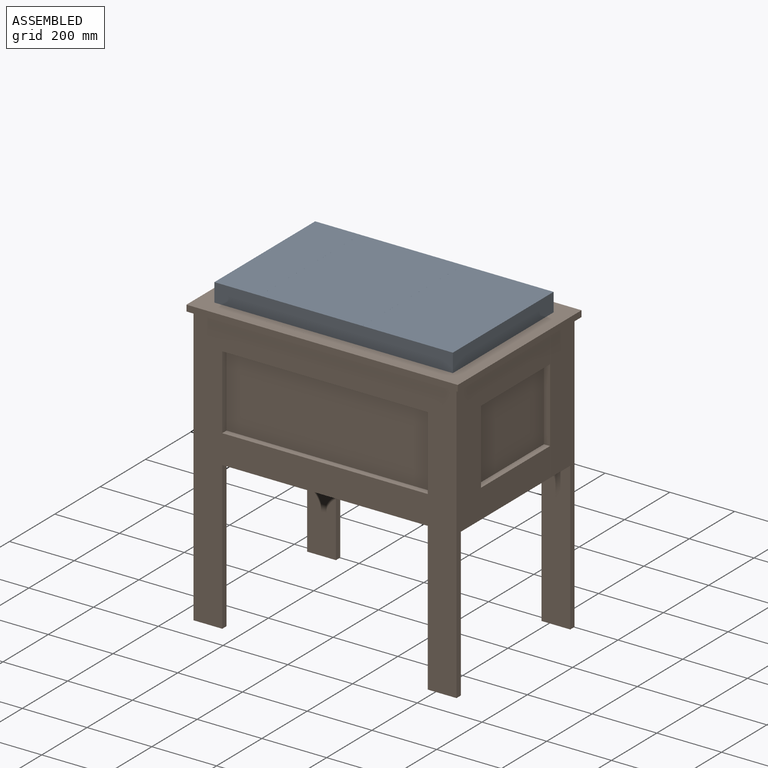
[diagram: assembled view]
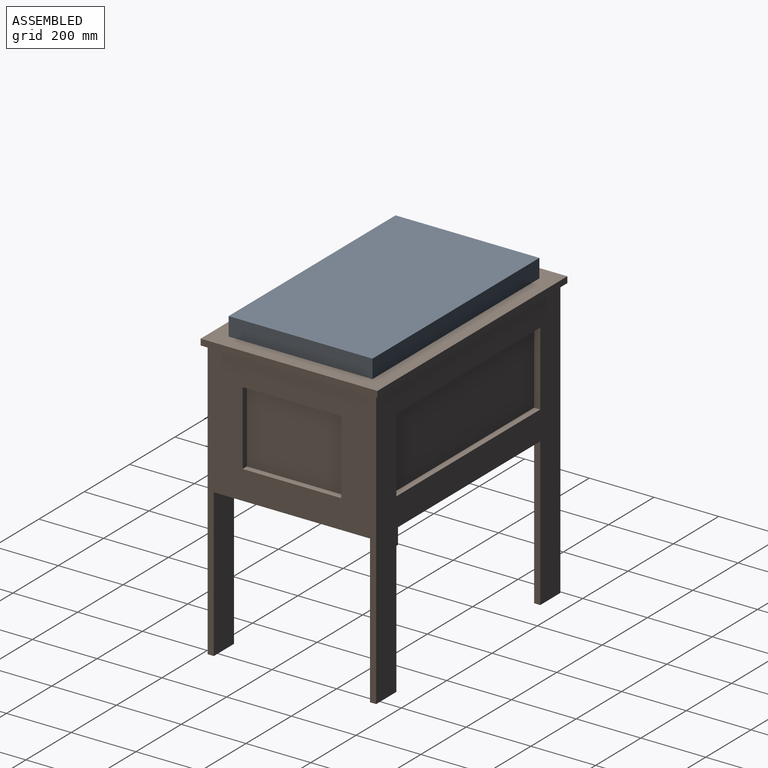
[diagram: assembled view, second angle]
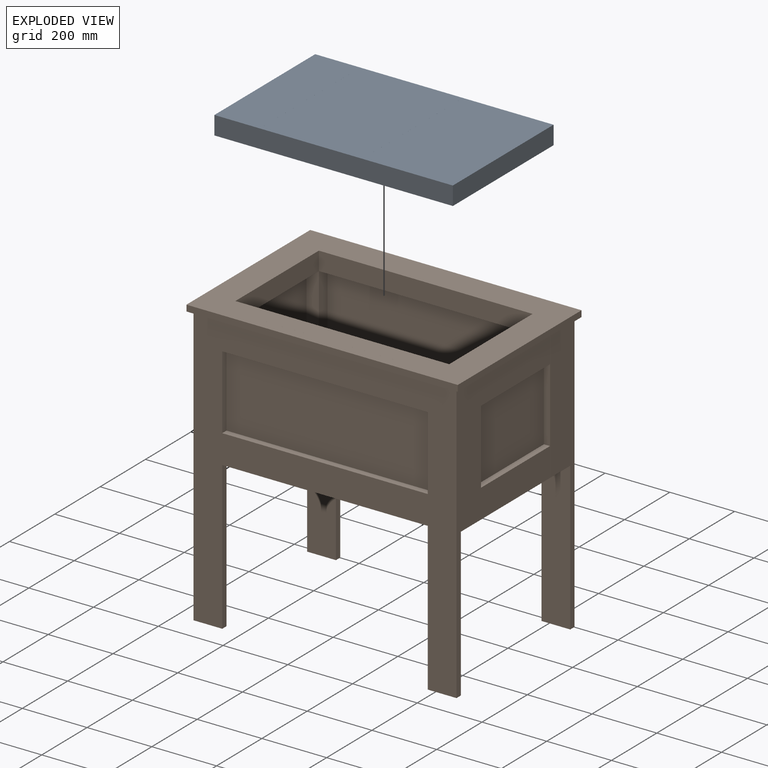
[diagram: exploded view]
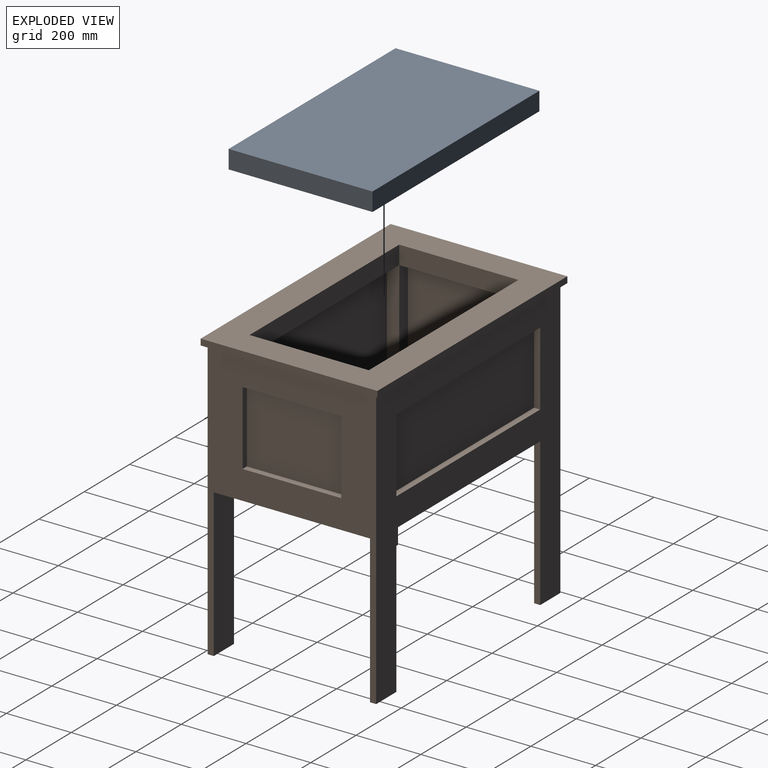
[diagram: exploded view, second angle]
ASSEMBLY  parts=2 mates=3
PART A: 29 faces, bbox 736.6x444.5x57.2 mm
  f0: plane 215.9x38.1mm, normal (0,1,0), area 8225.8mm2, adj f6,f9,f16,f20
  f1: plane 215.9x38.1mm, normal (0,-1,0), area 8225.8mm2, adj f6,f9,f16,f20
  f2: plane 152.4x38.1mm, normal (0,1,0), area 5806.4mm2, adj f6,f14,f15,f25
  f3: plane 152.4x38.1mm, normal (0,-1,0), area 5806.4mm2, adj f6,f14,f15,f25
  f4: plane 215.9x38.1mm, normal (0,1,0), area 8225.8mm2, adj f6,f10,f13,f17
  f5: plane 736.6x57.15mm, normal (0,-1,0), area 42089.6mm2, adj f6,f7,f8,f18,f19,f21,f22,f23
  f6: plane 736.6x444.5mm, normal (0,0,-1), area 112257.8mm2, adj f0,f1,f2,f3,f4,f5,f7,f8
  f7: plane 444.5x57.15mm, normal (1,0,0), area 25403.2mm2, adj f5,f6,f12,f22
  f8: plane 444.5x57.15mm, normal (-1,0,0), area 25403.2mm2, adj f5,f6,f12,f19
  f9: plane 368.3x38.1mm, normal (-1,0,0), area 14032.2mm2, adj f0,f1,f6,f20
  f10: plane 368.3x38.1mm, normal (1,0,0), area 14032.2mm2, adj f4,f6,f11,f17
  f11: plane 215.9x38.1mm, normal (0,-1,0), area 8225.8mm2, adj f6,f10,f13,f17
  f12: plane 736.6x57.15mm, normal (0,1,0), area 42089.6mm2, adj f6,f7,f8,f18,f19,f21,f22,f23
  f13: plane 368.3x38.1mm, normal (-1,0,0), area 14032.2mm2, adj f4,f6,f11,f17
  f14: plane 368.3x38.1mm, normal (1,0,0), area 14032.2mm2, adj f2,f3,f6,f25
  f15: plane 368.3x38.1mm, normal (-1,0,0), area 14032.2mm2, adj f2,f3,f6,f25
  f16: plane 368.3x38.1mm, normal (1,0,0), area 14032.2mm2, adj f0,f1,f6,f20
  f17: plane 368.3x215.9mm, normal (0,0,-1), area 79516mm2, adj f4,f10,f11,f13
  f18: plane 444.5x0.03mm, normal (1,0,0), area 11.3mm2, adj f5,f12,f19,f23
  f19: plane 444.5x139.7mm, normal (0,0,1), area 62096.6mm2, adj f5,f8,f12,f18
  f20: plane 368.3x215.9mm, normal (0,0,-1), area 79516mm2, adj f0,f1,f9,f16
  f21: plane 444.5x0.03mm, normal (-1,0,0), area 11.3mm2, adj f5,f12,f22,f24
  f22: plane 444.5x139.7mm, normal (0,0,1), area 62096.7mm2, adj f5,f7,f12,f21
  f23: plane 444.5x139.7mm, normal (0,0,1), area 62096.6mm2, adj f5,f12,f18,f27
  f24: plane 444.5x139.7mm, normal (0,0,1), area 62096.6mm2, adj f5,f12,f21,f26
  f25: plane 368.3x152.4mm, normal (0,0,-1), area 56128.9mm2, adj f2,f3,f14,f15
  f26: plane 444.5x0.03mm, normal (1,0,0), area 11.3mm2, adj f5,f12,f24,f28
  f27: plane 444.5x0.03mm, normal (-1,0,0), area 11.3mm2, adj f5,f12,f23,f28
  f28: plane 444.5x177.8mm, normal (0,0,1), area 79032.1mm2, adj f5,f12,f26,f27
PART B: 150 faces, bbox 838.2x546.1x882.7 mm
  f0: plane 368.3x0.03mm, normal (0,0,1), area 9.4mm2, adj f1,f49,f55,f144
  f1: plane 660.43x57.15mm, normal (0,1,0), area 37742.3mm2, adj f0,f46,f49,f53,f138,f144
  f2: plane 228.6x107.92mm, normal (0,1,0), area 24671.6mm2, adj f3,f83,f132,f135
  f3: plane 863.6x19.05mm, normal (1,0,0), area 13069mm2, adj f2,f45,f122,f123,f124,f131,f132,f135
  f4: plane 228.6x107.92mm, normal (0,1,0), area 24671.6mm2, adj f88,f126,f132,f135
  f5: plane 228.6x139.7mm, normal (0,1,0), area 31935.4mm2, adj f85,f86,f132,f135
  f6: plane 228.6x107.92mm, normal (0,-1,0), area 24671.6mm2, adj f74,f111,f116,f121
  f7: plane 863.6x19.05mm, normal (-1,0,0), area 13069mm2, adj f8,f45,f95,f96,f97,f116,f117,f120
  f8: plane 228.6x107.92mm, normal (0,-1,0), area 24671.6mm2, adj f7,f73,f116,f121
  f9: plane 228.6x139.7mm, normal (0,-1,0), area 31935.4mm2, adj f28,f69,f116,f121
  f10: plane 406.4x19.05mm, normal (0,1,0), area 4359.3mm2, adj f11,f45,f103,f106,f107,f108,f109,f137
  f11: plane 228.6x82.55mm, normal (-1,0,0), area 18870.9mm2, adj f10,f14,f106,f108
  f12: plane 228.6x82.55mm, normal (-1,0,0), area 18870.9mm2, adj f13,f16,f106,f108
  f13: plane 406.4x19.05mm, normal (0,-1,0), area 4359.3mm2, adj f12,f45,f105,f106,f107,f108,f109,f137
  f14: plane 228.6x0.03mm, normal (0,-1,0), area 5.8mm2, adj f11,f15,f106,f108
  f15: plane 228.6x139.7mm, normal (-1,0,0), area 31935.4mm2, adj f14,f16,f106,f108
  f16: plane 228.6x0.03mm, normal (0,1,0), area 5.8mm2, adj f12,f15,f106,f108
  f17: plane 406.4x19.05mm, normal (0,-1,0), area 4359.3mm2, adj f18,f45,f94,f98,f99,f100,f101,f137
  f18: plane 228.6x82.55mm, normal (1,0,0), area 18870.9mm2, adj f17,f23,f99,f101
  f19: plane 228.6x82.55mm, normal (1,0,0), area 18870.9mm2, adj f20,f21,f99,f101
  f20: plane 406.4x19.05mm, normal (0,1,0), area 4359.3mm2, adj f19,f45,f92,f98,f99,f100,f101,f137
  f21: plane 228.6x0.03mm, normal (0,-1,0), area 5.8mm2, adj f19,f22,f99,f101
  f22: plane 228.6x139.7mm, normal (1,0,0), area 31935.4mm2, adj f21,f23,f99,f101
  f23: plane 228.6x0.03mm, normal (0,1,0), area 5.8mm2, adj f18,f22,f99,f101
  f24: plane 406.4x19.05mm, normal (0,1,0), area 7741.9mm2, adj f43,f45,f82,f149
  f25: plane 406.4x12.7mm, normal (-1,0,0), area 5161.3mm2, adj f44,f45,f80,f142
  f26: plane 406.4x12.7mm, normal (1,0,0), area 5161.3mm2, adj f45,f56,f78,f148
  f27: plane 406.4x19.05mm, normal (0,-1,0), area 7741.9mm2, adj f45,f47,f72,f143
  f28: plane 425.45x0.03mm, normal (1,0,0), area 10.8mm2, adj f9,f45,f71,f115,f118,f138
  f29: plane 101.6x38.1mm, normal (0,1,0), area 3871mm2, adj f45,f48,f54,f67
  f30: plane 101.6x38.1mm, normal (0,-1,0), area 3871mm2, adj f45,f48,f54,f67
  f31: plane 171.45x38.1mm, normal (0,1,0), area 6532.2mm2, adj f45,f48,f65,f66
  f32: plane 171.45x38.1mm, normal (0,-1,0), area 6532.2mm2, adj f45,f48,f65,f66
  f33: plane 171.45x38.1mm, normal (0,1,0), area 6532.2mm2, adj f45,f48,f63,f64
  f34: plane 171.45x38.1mm, normal (0,-1,0), area 6532.2mm2, adj f45,f48,f63,f64
  f35: plane 368.3x38.1mm, normal (0,0,1), area 14032.2mm2, adj f39,f54,f61,f81
  f36: plane 660.4x38.1mm, normal (0,0,-1), area 25161.2mm2, adj f55,f58,f60,f90
  f37: plane 368.3x38.1mm, normal (0,0,-1), area 14032.2mm2, adj f40,f49,f59,f76
  f38: plane 101.6x38.1mm, normal (0,1,0), area 3871mm2, adj f45,f48,f51,f62
  f39: plane 330.2x38.1mm, normal (0,1,0), area 12580.6mm2, adj f35,f41,f50,f81
  f40: plane 330.2x38.1mm, normal (0,1,0), area 12580.6mm2, adj f37,f42,f52,f76
  f41: plane 330.2x38.1mm, normal (1,0,0), area 12580.6mm2, adj f39,f46,f48,f68
  f42: plane 330.2x38.1mm, normal (-1,0,0), area 12580.6mm2, adj f40,f46,f48,f68
  f43: plane 406.4x12.7mm, normal (-1,0,0), area 5161.3mm2, adj f24,f45,f79,f149
  f44: plane 406.4x19.05mm, normal (0,-1,0), area 7741.9mm2, adj f25,f45,f75,f142
  f45: plane 812.75x520.65mm, normal (0,0,-1), area 211366mm2, adj f3,f7,f10,f13,f17,f20,f24,f25
  f46: plane 660.4x38.1mm, normal (0,0,-1), area 25161.2mm2, adj f1,f41,f42,f68
  f47: plane 406.4x12.7mm, normal (1,0,0), area 5161.3mm2, adj f27,f45,f77,f143
  f48: plane 660.4x444.5mm, normal (0,0,1), area 92419.2mm2, adj f29,f30,f31,f32,f33,f34,f38,f41
  f49: plane 368.3x38.1mm, normal (-1,0,0), area 14032.2mm2, adj f0,f1,f37,f55
  f50: plane 368.3x38.1mm, normal (0,0,-1), area 14032.2mm2, adj f39,f53,f61,f81
  f51: plane 368.3x38.1mm, normal (-1,0,0), area 14032.2mm2, adj f38,f45,f52,f57
  f52: plane 368.3x38.1mm, normal (0,0,1), area 14032.2mm2, adj f40,f51,f59,f76
  f53: plane 368.3x57.15mm, normal (1,0,0), area 21048.3mm2, adj f1,f50,f55,f138
  f54: plane 368.3x38.1mm, normal (1,0,0), area 14032.2mm2, adj f29,f30,f35,f45
  f55: plane 660.43x57.15mm, normal (0,-1,0), area 37742.3mm2, adj f0,f36,f49,f53,f138,f144
  f56: plane 406.4x19.05mm, normal (0,1,0), area 7741.9mm2, adj f26,f45,f89,f148
  f57: plane 101.6x38.1mm, normal (0,-1,0), area 3871mm2, adj f45,f48,f51,f62
  f58: plane 330.2x38.1mm, normal (-1,0,0), area 12580.6mm2, adj f36,f48,f59,f90
  f59: plane 330.2x38.1mm, normal (0,-1,0), area 12580.6mm2, adj f37,f52,f58,f76
  f60: plane 330.2x38.1mm, normal (1,0,0), area 12580.6mm2, adj f36,f48,f61,f90
  f61: plane 330.2x38.1mm, normal (0,-1,0), area 12580.6mm2, adj f35,f50,f60,f81
  f62: plane 368.3x38.1mm, normal (1,0,0), area 14032.2mm2, adj f38,f45,f48,f57
  f63: plane 368.3x38.1mm, normal (-1,0,0), area 14032.2mm2, adj f33,f34,f45,f48
  f64: plane 368.3x38.1mm, normal (1,0,0), area 14032.2mm2, adj f33,f34,f45,f48
  f65: plane 368.3x38.1mm, normal (-1,0,0), area 14032.2mm2, adj f31,f32,f45,f48
  f66: plane 368.3x38.1mm, normal (1,0,0), area 14032.2mm2, adj f31,f32,f45,f48
  f67: plane 368.3x38.1mm, normal (-1,0,0), area 14032.2mm2, adj f29,f30,f45,f48
  f68: plane 660.4x330.2mm, normal (0,1,0), area 218064.1mm2, adj f41,f42,f46,f48
  f69: plane 425.45x0.03mm, normal (-1,0,0), area 10.8mm2, adj f9,f45,f70,f114,f119,f138
  f70: plane 425.45x139.7mm, normal (0,-1,0), area 59435.4mm2, adj f45,f69,f74,f138
  f71: plane 425.45x139.7mm, normal (0,-1,0), area 59435.4mm2, adj f28,f45,f73,f138
  f72: plane 406.4x19.05mm, normal (1,0,0), area 7741.9mm2, adj f27,f45,f95,f143
  f73: plane 425.45x0.03mm, normal (-1,0,0), area 10.8mm2, adj f8,f45,f71,f115,f118,f138
  f74: plane 425.45x0.03mm, normal (1,0,0), area 10.8mm2, adj f6,f45,f70,f114,f119,f138
  f75: plane 406.4x19.05mm, normal (-1,0,0), area 7741.9mm2, adj f44,f45,f110,f142
  f76: plane 368.3x330.2mm, normal (-1,0,0), area 121612.7mm2, adj f37,f40,f52,f59
  f77: plane 406.4x19.02mm, normal (0,-1,0), area 7731.6mm2, adj f45,f47,f91,f143
  f78: plane 406.4x19.02mm, normal (0,1,0), area 7731.6mm2, adj f26,f45,f93,f148
  f79: plane 406.4x19.02mm, normal (0,1,0), area 7731.6mm2, adj f43,f45,f104,f149
  f80: plane 406.4x19.02mm, normal (0,-1,0), area 7731.6mm2, adj f25,f45,f102,f142
  f81: plane 368.3x330.2mm, normal (1,0,0), area 121612.7mm2, adj f35,f39,f50,f61
  f82: plane 406.4x19.05mm, normal (-1,0,0), area 7741.9mm2, adj f24,f45,f122,f149
  f83: plane 406.4x0.03mm, normal (1,0,0), area 10.3mm2, adj f2,f45,f84,f129,f134,f147
  f84: plane 406.4x139.7mm, normal (0,1,0), area 56774.1mm2, adj f45,f83,f85,f147
  f85: plane 406.4x0.03mm, normal (-1,0,0), area 10.3mm2, adj f5,f45,f84,f129,f134,f147
  f86: plane 406.4x0.03mm, normal (1,0,0), area 10.3mm2, adj f5,f45,f87,f130,f133,f146
  f87: plane 406.4x139.7mm, normal (0,1,0), area 56774.1mm2, adj f45,f86,f88,f146
  f88: plane 406.4x0.03mm, normal (-1,0,0), area 10.3mm2, adj f4,f45,f87,f130,f133,f146
  f89: plane 406.4x19.05mm, normal (1,0,0), area 7741.9mm2, adj f45,f56,f125,f148
  f90: plane 660.4x330.2mm, normal (0,-1,0), area 218064.1mm2, adj f36,f48,f58,f60
  f91: plane 406.4x31.75mm, normal (-1,0,0), area 12903.2mm2, adj f45,f77,f95,f143
  f92: plane 863.6x107.95mm, normal (1,0,0), area 52580.5mm2, adj f20,f45,f95,f96,f97,f137
  f93: plane 406.4x31.75mm, normal (-1,0,0), area 12903.2mm2, adj f45,f78,f125,f148
  f94: plane 863.6x107.95mm, normal (1,0,0), area 52580.5mm2, adj f17,f45,f125,f127,f128,f137
  f95: plane 863.6x88.9mm, normal (0,1,0), area 56118.6mm2, adj f7,f45,f72,f91,f92,f97,f143
  f96: plane 863.6x88.9mm, normal (0,-1,0), area 76774mm2, adj f7,f92,f97,f137
  f97: plane 88.9x19.05mm, normal (0,0,-1), area 1693.5mm2, adj f7,f92,f95,f96
  f98: plane 304.8x88.9mm, normal (1,0,0), area 27096.7mm2, adj f17,f20,f99,f137
  f99: plane 304.8x19.02mm, normal (0,0,-1), area 5795.1mm2, adj f17,f18,f19,f20,f21,f22,f23,f98
  f100: plane 304.8x88.9mm, normal (1,0,0), area 27096.7mm2, adj f17,f20,f45,f101
  f101: plane 304.8x19.02mm, normal (0,0,1), area 5795.1mm2, adj f17,f18,f19,f20,f21,f22,f23,f100
  f102: plane 406.4x31.75mm, normal (1,0,0), area 12903.2mm2, adj f45,f80,f110,f142
  f103: plane 863.6x107.95mm, normal (-1,0,0), area 52580.5mm2, adj f10,f45,f110,f112,f113,f137
  f104: plane 406.4x31.75mm, normal (1,0,0), area 12903.2mm2, adj f45,f79,f122,f149
  f105: plane 863.6x107.95mm, normal (-1,0,0), area 52580.5mm2, adj f13,f45,f122,f123,f124,f137
  f106: plane 304.8x19.02mm, normal (0,0,-1), area 5795.1mm2, adj f10,f11,f12,f13,f14,f15,f16,f107
  f107: plane 304.8x88.9mm, normal (-1,0,0), area 27096.7mm2, adj f10,f13,f106,f137
  f108: plane 304.8x19.02mm, normal (0,0,1), area 5795.1mm2, adj f10,f11,f12,f13,f14,f15,f16,f109
  f109: plane 304.8x88.9mm, normal (-1,0,0), area 27096.7mm2, adj f10,f13,f45,f108
  f110: plane 863.6x88.9mm, normal (0,1,0), area 56118.6mm2, adj f45,f75,f102,f103,f111,f113,f142
  f111: plane 863.6x19.05mm, normal (1,0,0), area 13069mm2, adj f6,f45,f110,f112,f113,f116,f117,f120
  f112: plane 863.6x88.9mm, normal (0,-1,0), area 76774mm2, adj f103,f111,f113,f137
  f113: plane 88.9x19.05mm, normal (0,0,-1), area 1693.5mm2, adj f103,f110,f111,f112
  f114: plane 139.7x107.95mm, normal (0,1,0), area 15080.6mm2, adj f69,f74,f116,f138
  f115: plane 139.7x107.95mm, normal (0,1,0), area 15080.6mm2, adj f28,f73,f116,f138
  f116: plane 634.95x19.02mm, normal (0,0,-1), area 12079.7mm2, adj f6,f7,f8,f9,f111,f114,f115,f117
  f117: plane 634.95x88.9mm, normal (0,-1,0), area 56447mm2, adj f7,f111,f116,f137
  f118: plane 139.7x88.9mm, normal (0,1,0), area 12419.3mm2, adj f28,f45,f73,f121
  f119: plane 139.7x88.9mm, normal (0,1,0), area 12419.3mm2, adj f45,f69,f74,f121
  f120: plane 634.95x88.9mm, normal (0,-1,0), area 56447mm2, adj f7,f45,f111,f121
  f121: plane 634.95x19.02mm, normal (0,0,1), area 12079.7mm2, adj f6,f7,f8,f9,f111,f118,f119,f120
  f122: plane 863.6x88.9mm, normal (0,-1,0), area 56118.6mm2, adj f3,f45,f82,f104,f105,f124,f149
  f123: plane 863.6x88.9mm, normal (0,1,0), area 76774mm2, adj f3,f105,f124,f137
  f124: plane 88.9x19.05mm, normal (0,0,-1), area 1693.5mm2, adj f3,f105,f122,f123
  f125: plane 863.6x88.9mm, normal (0,-1,0), area 56118.6mm2, adj f45,f89,f93,f94,f126,f128,f148
  f126: plane 863.6x19.05mm, normal (-1,0,0), area 13069mm2, adj f4,f45,f125,f127,f128,f131,f132,f135
  f127: plane 863.6x88.9mm, normal (0,1,0), area 76774mm2, adj f94,f126,f128,f137
  f128: plane 88.9x19.05mm, normal (0,0,-1), area 1693.5mm2, adj f94,f125,f126,f127
  f129: plane 139.7x88.9mm, normal (0,-1,0), area 12419.3mm2, adj f83,f85,f132,f147
  f130: plane 139.7x88.9mm, normal (0,-1,0), area 12419.3mm2, adj f86,f88,f132,f146
  f131: plane 634.95x88.9mm, normal (0,1,0), area 56447mm2, adj f3,f126,f132,f137
  f132: plane 634.95x19.02mm, normal (0,0,-1), area 12079.7mm2, adj f2,f3,f4,f5,f126,f129,f130,f131
  f133: plane 139.7x88.9mm, normal (0,-1,0), area 12419.3mm2, adj f45,f86,f88,f135
  f134: plane 139.7x88.9mm, normal (0,-1,0), area 12419.3mm2, adj f45,f83,f85,f135
  f135: plane 634.95x19.02mm, normal (0,0,1), area 12079.7mm2, adj f2,f3,f4,f5,f126,f133,f134,f136
  f136: plane 634.95x88.9mm, normal (0,1,0), area 56447mm2, adj f3,f45,f126,f135
  f137: plane 838.2x546.1mm, normal (0,0,-1), area 34590.3mm2, adj f3,f7,f10,f13,f17,f20,f92,f94
  f138: plane 838.2x546.1mm, normal (0,0,1), area 214499.2mm2, adj f1,f28,f53,f55,f69,f70,f71,f73
  f139: plane 546.1x19.05mm, normal (1,0,0), area 10403.2mm2, adj f137,f138,f140,f145
  f140: plane 838.2x19.05mm, normal (0,-1,0), area 15967.7mm2, adj f137,f138,f139,f141
  f141: plane 546.1x19.05mm, normal (-1,0,0), area 10403.2mm2, adj f137,f138,f140,f145
  f142: plane 38.07x31.75mm, normal (0,0,-1), area 966.9mm2, adj f25,f44,f75,f80,f102,f110
  f143: plane 38.07x31.75mm, normal (0,0,-1), area 966.9mm2, adj f27,f47,f72,f77,f91,f95
  f144: plane 368.3x19.05mm, normal (-1,0,0), area 7016.1mm2, adj f0,f1,f55,f138
  f145: plane 838.2x19.05mm, normal (0,1,0), area 15967.7mm2, adj f137,f138,f139,f141
  f146: plane 139.7x0.03mm, normal (0,0,-1), area 3.5mm2, adj f86,f87,f88,f130
  f147: plane 139.7x0.03mm, normal (0,0,-1), area 3.5mm2, adj f83,f84,f85,f129
  f148: plane 38.07x31.75mm, normal (0,0,-1), area 966.9mm2, adj f26,f56,f78,f89,f93,f125
  f149: plane 38.07x31.75mm, normal (0,0,-1), area 966.9mm2, adj f24,f43,f79,f82,f104,f122
PLACE A t=(0,0,463.55)mm
PLACE B at identity fixed
MATE planar A.f6 <-> B.f138  axis (0,0,-1) through (368.3,184.15,425.45)mm
MATE planar A.f3 <-> B.f55  axis (0,-1,0) through (368.3,368.3,444.5)mm
MATE planar B.f53 <-> A.f10  axis (1,0,0) through (38.1,184.15,396.88)mm
